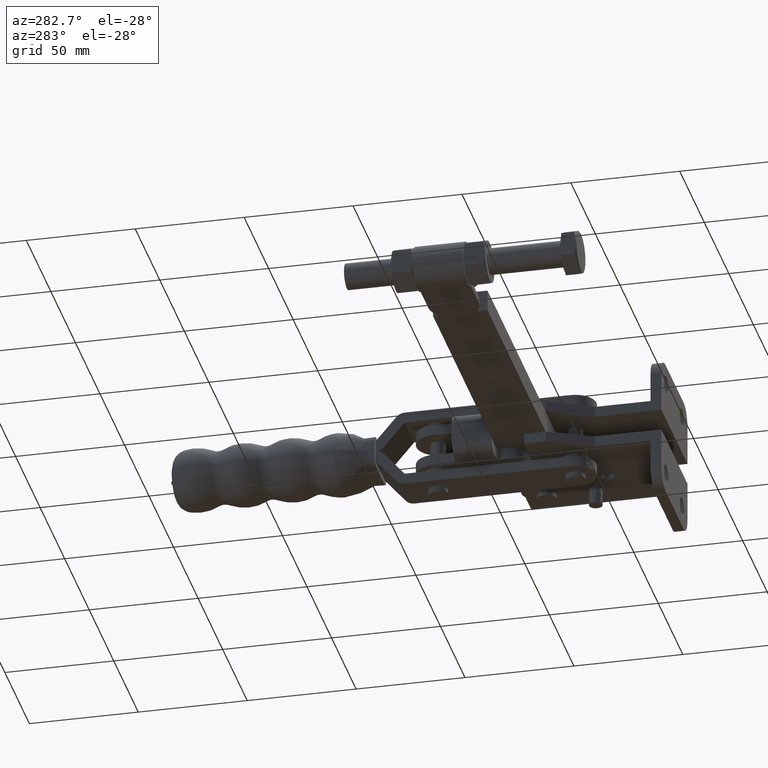
[diagram: clean part render]
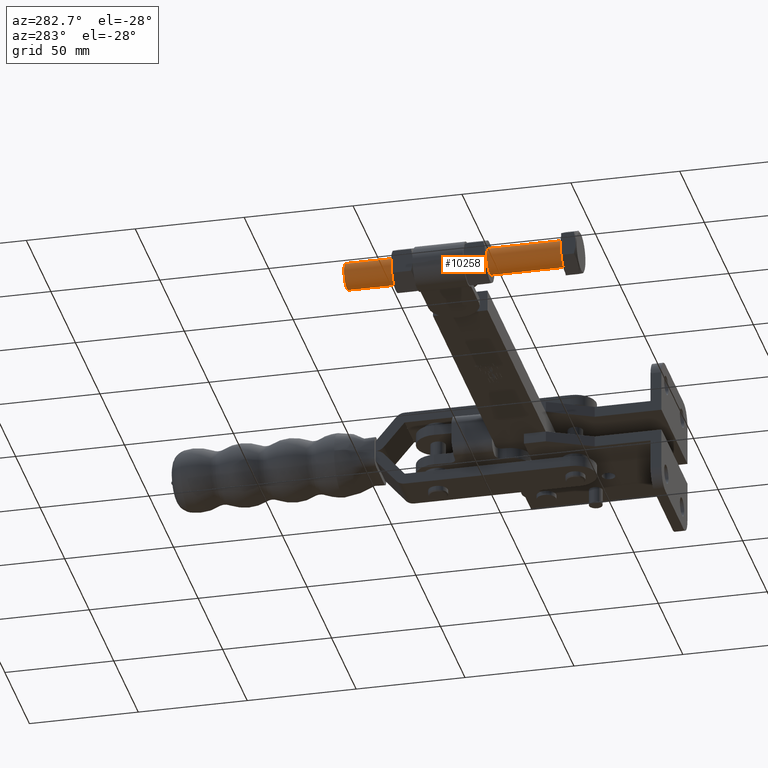
[diagram: same view with one face highlighted and labeled with its STEP entity id]
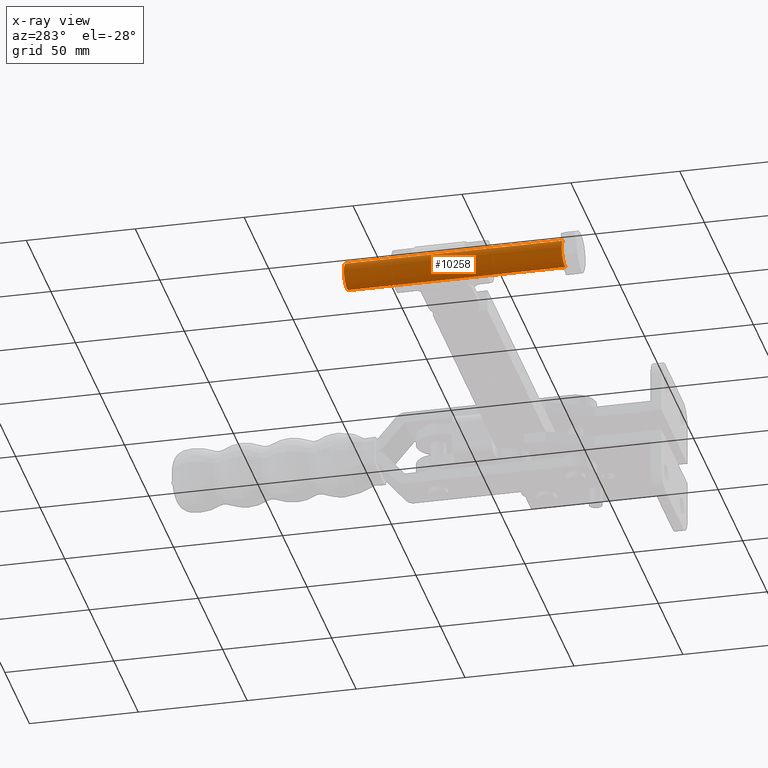
[diagram: x-ray of the same camera — body ghosted, the highlighted face saturated]
A machine part, auxiliary view. The second image highlights one B-rep face of the part: STEP entity #10258.
The next image is the same camera in x-ray: the body ghosted, the highlighted face saturated — about 0% of this face is hidden behind the body in this view.
In plain terms, the highlighted cylindrical surface (edge-blend (fillet) strip) has radius 6 mm, axis along (0, -1, 0).
Its self-contained STEP definition (entity closure, byte-faithful):
#324 = EDGE_CURVE ( 'NONE', #16558, #20839, #22002, .T. ) ;
#786 = DIRECTION ( 'NONE',  ( 0.0000000000000000000, -1.000000000000000000, 0.0000000000000000000 ) ) ;
#873 = CARTESIAN_POINT ( 'NONE',  ( -213.7747981422687100, 132.8507121338248300, -5.196152422706635600 ) ) ;
#1233 = ORIENTED_EDGE ( 'NONE', *, *, #23743, .T. ) ;
#1796 = DIRECTION ( 'NONE',  ( 0.5000000000000096600, 0.0000000000000000000, -0.8660254037844330500 ) ) ;
#2199 = AXIS2_PLACEMENT_3D ( 'NONE', #15252, #17226, #7315 ) ;
#2321 = EDGE_CURVE ( 'NONE', #16558, #4235, #10665, .T. ) ;
#2486 = EDGE_LOOP ( 'NONE', ( #15388, #8768, #1233, #5991 ) ) ;
#4235 = VERTEX_POINT ( 'NONE', #21548 ) ;
#5145 = AXIS2_PLACEMENT_3D ( 'NONE', #10989, #17301, #1796 ) ;
#5991 = ORIENTED_EDGE ( 'NONE', *, *, #6874, .F. ) ;
#6083 = VECTOR ( 'NONE', #786, 1000.000000000000000 ) ;
#6874 = EDGE_CURVE ( 'NONE', #20839, #24873, #24130, .T. ) ;
#7315 = DIRECTION ( 'NONE',  ( -0.5000000000000096600, 0.0000000000000000000, 0.8660254037844330500 ) ) ;
#8557 = VECTOR ( 'NONE', #24066, 1000.000000000000000 ) ;
#8768 = ORIENTED_EDGE ( 'NONE', *, *, #2321, .T. ) ;
#9055 = DIRECTION ( 'NONE',  ( 0.0000000000000000000, 1.000000000000000000, 0.0000000000000000000 ) ) ;
#10258 = ADVANCED_FACE ( 'NONE', ( #14738 ), #14117, .T. ) ;
#10665 = LINE ( 'NONE', #873, #6083 ) ;
#10989 = CARTESIAN_POINT ( 'NONE',  ( -216.7747981422687600, 132.8507121338248300, -3.588723036196733000E-014 ) ) ;
#12376 = CARTESIAN_POINT ( 'NONE',  ( -213.7747981422687100, 132.8507121338248300, -5.196152422706635600 ) ) ;
#12726 = CARTESIAN_POINT ( 'NONE',  ( -219.7747981422688200, 32.85071213382480700, 5.196152422706563600 ) ) ;
#14117 = CYLINDRICAL_SURFACE ( 'NONE', #2199, 6.000000000000000900 ) ;
#14738 = FACE_OUTER_BOUND ( 'NONE', #2486, .T. ) ;
#14883 = CIRCLE ( 'NONE', #23460, 6.000000000000000900 ) ;
#15252 = CARTESIAN_POINT ( 'NONE',  ( -216.7747981422687600, 132.8507121338248300, -3.588723036196733000E-014 ) ) ;
#15388 = ORIENTED_EDGE ( 'NONE', *, *, #324, .F. ) ;
#16558 = VERTEX_POINT ( 'NONE', #12376 ) ;
#17226 = DIRECTION ( 'NONE',  ( 0.0000000000000000000, -1.000000000000000000, 0.0000000000000000000 ) ) ;
#17301 = DIRECTION ( 'NONE',  ( 0.0000000000000000000, 1.000000000000000000, 0.0000000000000000000 ) ) ;
#20705 = CARTESIAN_POINT ( 'NONE',  ( -216.7747981422687600, 32.85071213382480700, -3.588723036196733000E-014 ) ) ;
#20839 = VERTEX_POINT ( 'NONE', #21219 ) ;
#21219 = CARTESIAN_POINT ( 'NONE',  ( -219.7747981422688200, 132.8507121338248300, 5.196152422706563600 ) ) ;
#21548 = CARTESIAN_POINT ( 'NONE',  ( -213.7747981422687100, 32.85071213382480700, -5.196152422706635600 ) ) ;
#22002 = CIRCLE ( 'NONE', #5145, 6.000000000000000900 ) ;
#22078 = CARTESIAN_POINT ( 'NONE',  ( -219.7747981422688200, 132.8507121338248300, 5.196152422706563600 ) ) ;
#22694 = DIRECTION ( 'NONE',  ( 0.5000000000000096600, 0.0000000000000000000, -0.8660254037844330500 ) ) ;
#23460 = AXIS2_PLACEMENT_3D ( 'NONE', #20705, #9055, #22694 ) ;
#23743 = EDGE_CURVE ( 'NONE', #4235, #24873, #14883, .T. ) ;
#24066 = DIRECTION ( 'NONE',  ( 0.0000000000000000000, -1.000000000000000000, 0.0000000000000000000 ) ) ;
#24130 = LINE ( 'NONE', #22078, #8557 ) ;
#24873 = VERTEX_POINT ( 'NONE', #12726 ) ;